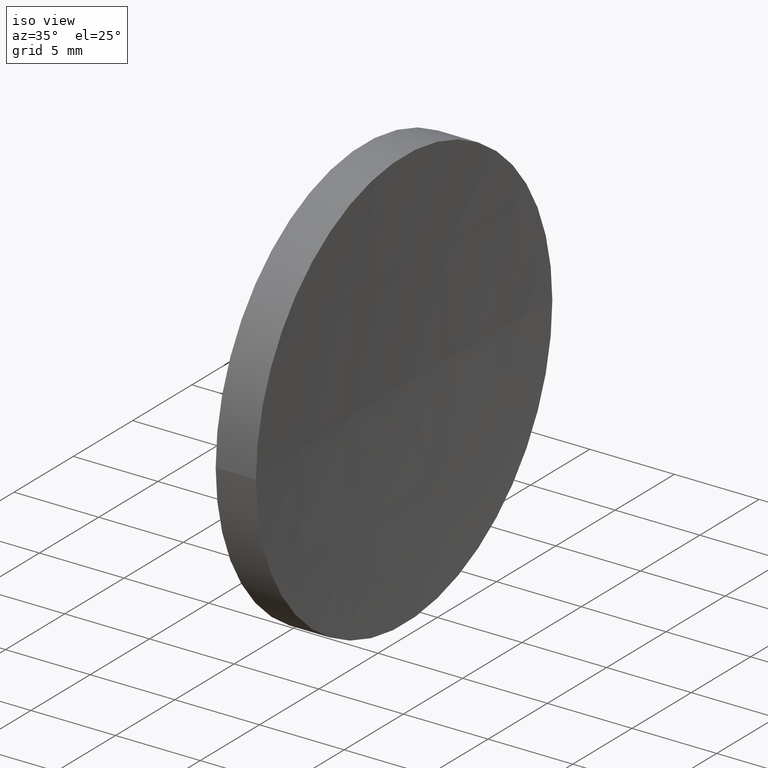
[diagram: clean part render]
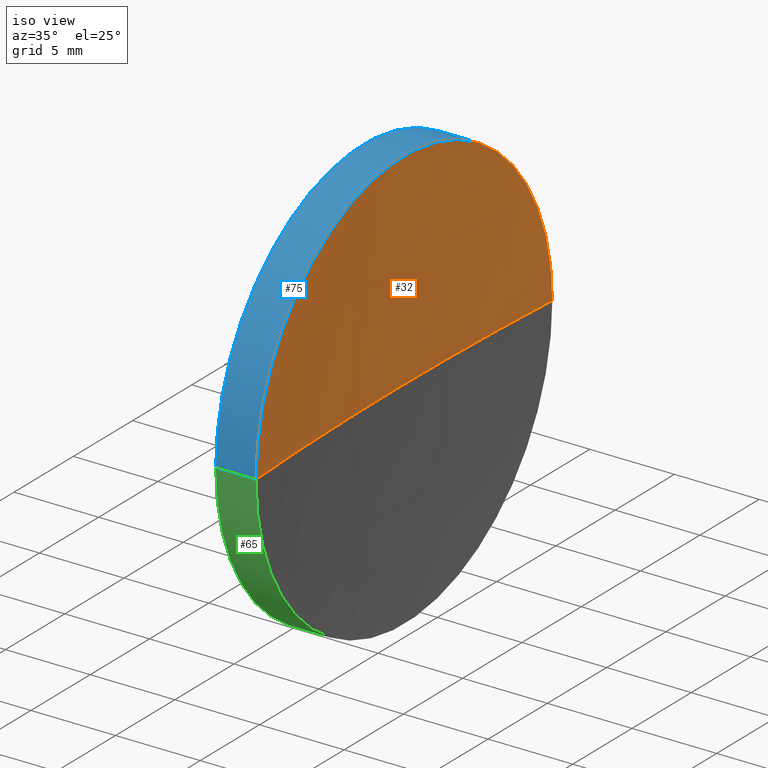
[diagram: same view with three faces highlighted in distinct colors, each labeled with its STEP entity id]
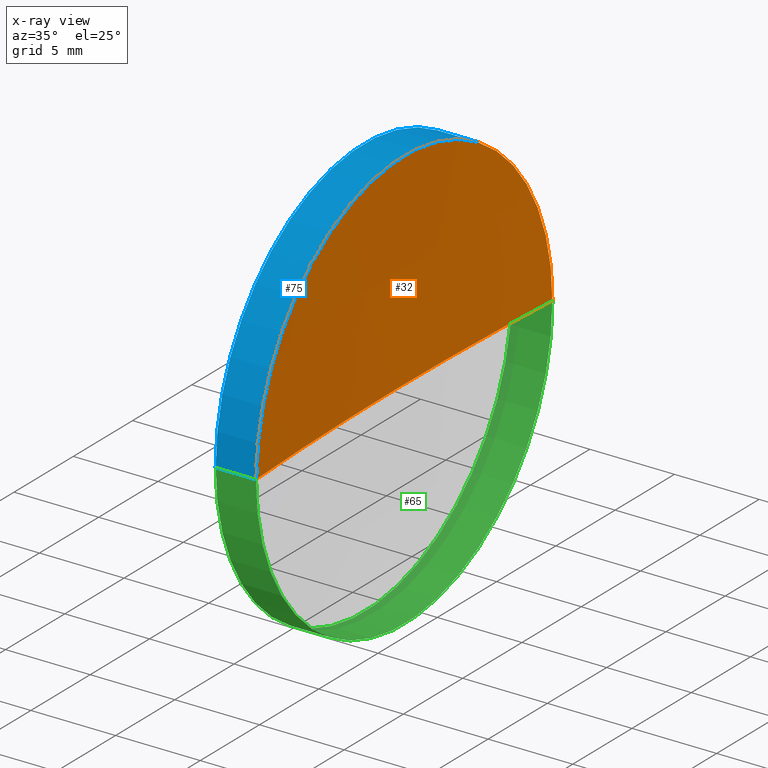
[diagram: x-ray of the same camera — body ghosted, the three highlighted faces saturated]
A machine part, iso view with three faces highlighted in distinct colors.
The next image is the same camera in x-ray (body ghosted, the three faces saturated) — at least one of them is partly hidden behind the body in this view.
Their STEP definitions:

[orange] entity #32 — the highlighted spherical surface has radius 206.1 mm.
#2 = EDGE_CURVE ( 'NONE', #10, #25, #61, .T. ) ;
#5 = AXIS2_PLACEMENT_3D ( 'NONE', #35, #67, #92 ) ;
#7 = AXIS2_PLACEMENT_3D ( 'NONE', #66, #77, #22 ) ;
#10 = VERTEX_POINT ( 'NONE', #140 ) ;
#11 = EDGE_CURVE ( 'NONE', #88, #25, #155, .T. ) ;
#14 = AXIS2_PLACEMENT_3D ( 'NONE', #23, #20, #104 ) ;
#20 = DIRECTION ( 'NONE',  ( -1.000000000000000000, 7.636108817321419600E-016, -0.0000000000000000000 ) ) ;
#22 = DIRECTION ( 'NONE',  ( 1.000000000000000000, 0.0000000000000000000, 0.0000000000000000000 ) ) ;
#23 = CARTESIAN_POINT ( 'NONE',  ( 59.73760295294823000, 32.57872591329309100, 0.0000000000000000000 ) ) ;
#25 = VERTEX_POINT ( 'NONE', #117 ) ;
#32 = ADVANCED_FACE ( 'NONE', ( #158 ), #96, .F. ) ;
#34 = DIRECTION ( 'NONE',  ( 8.080225797854122700E-016, 1.000000000000000000, 0.0000000000000000000 ) ) ;
#35 = CARTESIAN_POINT ( 'NONE',  ( 265.4581901580211300, 32.57872591329290700, 0.0000000000000000000 ) ) ;
#36 = EDGE_CURVE ( 'NONE', #10, #88, #51, .T. ) ;
#42 = CARTESIAN_POINT ( 'NONE',  ( 59.73760295294821500, 45.07872591329273600, 0.0000000000000000000 ) ) ;
#51 = CIRCLE ( 'NONE', #14, 12.50000000000000000 ) ;
#61 = CIRCLE ( 'NONE', #5, 206.0999999999999900 ) ;
#64 = ORIENTED_EDGE ( 'NONE', *, *, #11, .F. ) ;
#66 = CARTESIAN_POINT ( 'NONE',  ( 265.4581901580211300, 32.57872591329290700, 0.0000000000000000000 ) ) ;
#67 = DIRECTION ( 'NONE',  ( 9.351536221073556900E-032, 1.224646799147353200E-016, -1.000000000000000000 ) ) ;
#74 = EDGE_LOOP ( 'NONE', ( #79, #97, #64 ) ) ;
#77 = DIRECTION ( 'NONE',  ( 0.0000000000000000000, 0.0000000000000000000, 1.000000000000000000 ) ) ;
#79 = ORIENTED_EDGE ( 'NONE', *, *, #36, .F. ) ;
#88 = VERTEX_POINT ( 'NONE', #42 ) ;
#92 = DIRECTION ( 'NONE',  ( 0.0000000000000000000, 1.000000000000000000, 1.224646799147353500E-016 ) ) ;
#94 = CARTESIAN_POINT ( 'NONE',  ( 265.4581901580211300, 32.57872591329290700, 0.0000000000000000000 ) ) ;
#96 = SPHERICAL_SURFACE ( 'NONE', #149, 206.0999999999999900 ) ;
#97 = ORIENTED_EDGE ( 'NONE', *, *, #2, .T. ) ;
#104 = DIRECTION ( 'NONE',  ( -5.551115123125782700E-016, -1.000000000000000000, 0.0000000000000000000 ) ) ;
#117 = CARTESIAN_POINT ( 'NONE',  ( 59.35819015802113100, 32.57872591329307700, 0.0000000000000000000 ) ) ;
#140 = CARTESIAN_POINT ( 'NONE',  ( 59.73760295294820800, 20.07872591329342200, -1.530808498934147900E-015 ) ) ;
#141 = DIRECTION ( 'NONE',  ( 0.0000000000000000000, 0.0000000000000000000, -1.000000000000000000 ) ) ;
#149 = AXIS2_PLACEMENT_3D ( 'NONE', #94, #141, #34 ) ;
#155 = CIRCLE ( 'NONE', #7, 206.0999999999999900 ) ;
#158 = FACE_OUTER_BOUND ( 'NONE', #74, .T. ) ;

[blue] entity #75 — the highlighted cylindrical surface (partial cylindrical patch) has radius 12.5 mm, axis along (-1, 0, -0).
#6 = VECTOR ( 'NONE', #164, 1000.000000000000000 ) ;
#10 = VERTEX_POINT ( 'NONE', #140 ) ;
#14 = AXIS2_PLACEMENT_3D ( 'NONE', #23, #20, #104 ) ;
#15 = CARTESIAN_POINT ( 'NONE',  ( 57.35819015802111700, 45.07872591329309100, 1.530808498934191900E-015 ) ) ;
#18 = VERTEX_POINT ( 'NONE', #45 ) ;
#20 = DIRECTION ( 'NONE',  ( -1.000000000000000000, 7.636108817321419600E-016, -0.0000000000000000000 ) ) ;
#21 = LINE ( 'NONE', #56, #6 ) ;
#23 = CARTESIAN_POINT ( 'NONE',  ( 59.73760295294823000, 32.57872591329309100, 0.0000000000000000000 ) ) ;
#28 = EDGE_CURVE ( 'NONE', #18, #159, #166, .T. ) ;
#31 = ORIENTED_EDGE ( 'NONE', *, *, #133, .F. ) ;
#36 = EDGE_CURVE ( 'NONE', #10, #88, #51, .T. ) ;
#39 = ORIENTED_EDGE ( 'NONE', *, *, #36, .T. ) ;
#42 = CARTESIAN_POINT ( 'NONE',  ( 59.73760295294821500, 45.07872591329273600, 0.0000000000000000000 ) ) ;
#44 = DIRECTION ( 'NONE',  ( -1.000000000000000000, 7.636108817321419600E-016, -0.0000000000000000000 ) ) ;
#45 = CARTESIAN_POINT ( 'NONE',  ( 57.35819015802110200, 20.07872591329309800, 0.0000000000000000000 ) ) ;
#47 = AXIS2_PLACEMENT_3D ( 'NONE', #113, #44, #50 ) ;
#48 = FACE_OUTER_BOUND ( 'NONE', #124, .T. ) ;
#50 = DIRECTION ( 'NONE',  ( -5.551115123125782700E-016, -1.000000000000000000, 0.0000000000000000000 ) ) ;
#51 = CIRCLE ( 'NONE', #14, 12.50000000000000000 ) ;
#54 = DIRECTION ( 'NONE',  ( -5.551115123125784700E-016, -1.000000000000000000, 0.0000000000000000000 ) ) ;
#56 = CARTESIAN_POINT ( 'NONE',  ( 55.00739462442117400, 20.07872591329309500, 0.0000000000000000000 ) ) ;
#73 = LINE ( 'NONE', #132, #82 ) ;
#75 = ADVANCED_FACE ( 'NONE', ( #48 ), #115, .T. ) ;
#82 = VECTOR ( 'NONE', #83, 1000.000000000000000 ) ;
#83 = DIRECTION ( 'NONE',  ( -1.000000000000000000, 7.636108817321419600E-016, -0.0000000000000000000 ) ) ;
#85 = AXIS2_PLACEMENT_3D ( 'NONE', #106, #122, #54 ) ;
#88 = VERTEX_POINT ( 'NONE', #42 ) ;
#104 = DIRECTION ( 'NONE',  ( -5.551115123125782700E-016, -1.000000000000000000, 0.0000000000000000000 ) ) ;
#106 = CARTESIAN_POINT ( 'NONE',  ( 57.35819015802111000, 32.57872591329309800, 0.0000000000000000000 ) ) ;
#113 = CARTESIAN_POINT ( 'NONE',  ( 55.00739462442118100, 32.57872591329309800, 0.0000000000000000000 ) ) ;
#115 = CYLINDRICAL_SURFACE ( 'NONE', #47, 12.50000000000000000 ) ;
#122 = DIRECTION ( 'NONE',  ( -1.000000000000000000, 7.636108817321419600E-016, -0.0000000000000000000 ) ) ;
#123 = ORIENTED_EDGE ( 'NONE', *, *, #146, .T. ) ;
#124 = EDGE_LOOP ( 'NONE', ( #39, #123, #144, #31 ) ) ;
#132 = CARTESIAN_POINT ( 'NONE',  ( 55.00739462442118800, 45.07872591329309100, 1.530808498934191500E-015 ) ) ;
#133 = EDGE_CURVE ( 'NONE', #10, #18, #21, .T. ) ;
#140 = CARTESIAN_POINT ( 'NONE',  ( 59.73760295294820800, 20.07872591329342200, -1.530808498934147900E-015 ) ) ;
#144 = ORIENTED_EDGE ( 'NONE', *, *, #28, .F. ) ;
#146 = EDGE_CURVE ( 'NONE', #88, #159, #73, .T. ) ;
#159 = VERTEX_POINT ( 'NONE', #15 ) ;
#164 = DIRECTION ( 'NONE',  ( -1.000000000000000000, 7.636108817321419600E-016, -0.0000000000000000000 ) ) ;
#166 = CIRCLE ( 'NONE', #85, 12.49999999999999600 ) ;

[green] entity #65 — the highlighted cylindrical surface (partial cylindrical patch) has radius 12.5 mm, axis along (-1, 0, -0).
#6 = VECTOR ( 'NONE', #164, 1000.000000000000000 ) ;
#10 = VERTEX_POINT ( 'NONE', #140 ) ;
#13 = ORIENTED_EDGE ( 'NONE', *, *, #133, .T. ) ;
#15 = CARTESIAN_POINT ( 'NONE',  ( 57.35819015802111700, 45.07872591329309100, 1.530808498934191900E-015 ) ) ;
#18 = VERTEX_POINT ( 'NONE', #45 ) ;
#21 = LINE ( 'NONE', #56, #6 ) ;
#27 = DIRECTION ( 'NONE',  ( -1.000000000000000000, 7.636108817321419600E-016, -0.0000000000000000000 ) ) ;
#42 = CARTESIAN_POINT ( 'NONE',  ( 59.73760295294821500, 45.07872591329273600, 0.0000000000000000000 ) ) ;
#45 = CARTESIAN_POINT ( 'NONE',  ( 57.35819015802110200, 20.07872591329309800, 0.0000000000000000000 ) ) ;
#55 = DIRECTION ( 'NONE',  ( -5.551115123125782700E-016, -1.000000000000000000, 0.0000000000000000000 ) ) ;
#56 = CARTESIAN_POINT ( 'NONE',  ( 55.00739462442117400, 20.07872591329309500, 0.0000000000000000000 ) ) ;
#57 = ORIENTED_EDGE ( 'NONE', *, *, #162, .F. ) ;
#65 = ADVANCED_FACE ( 'NONE', ( #108 ), #69, .T. ) ;
#69 = CYLINDRICAL_SURFACE ( 'NONE', #81, 12.50000000000000000 ) ;
#73 = LINE ( 'NONE', #132, #82 ) ;
#81 = AXIS2_PLACEMENT_3D ( 'NONE', #119, #120, #55 ) ;
#82 = VECTOR ( 'NONE', #83, 1000.000000000000000 ) ;
#83 = DIRECTION ( 'NONE',  ( -1.000000000000000000, 7.636108817321419600E-016, -0.0000000000000000000 ) ) ;
#86 = CARTESIAN_POINT ( 'NONE',  ( 57.35819015802111000, 32.57872591329309800, 0.0000000000000000000 ) ) ;
#88 = VERTEX_POINT ( 'NONE', #42 ) ;
#89 = DIRECTION ( 'NONE',  ( -1.000000000000000000, 7.636108817321419600E-016, -0.0000000000000000000 ) ) ;
#93 = EDGE_LOOP ( 'NONE', ( #100, #148, #13, #57 ) ) ;
#100 = ORIENTED_EDGE ( 'NONE', *, *, #146, .F. ) ;
#108 = FACE_OUTER_BOUND ( 'NONE', #93, .T. ) ;
#118 = CIRCLE ( 'NONE', #157, 12.50000000000000000 ) ;
#119 = CARTESIAN_POINT ( 'NONE',  ( 55.00739462442118100, 32.57872591329309800, 0.0000000000000000000 ) ) ;
#120 = DIRECTION ( 'NONE',  ( -1.000000000000000000, 7.636108817321419600E-016, -0.0000000000000000000 ) ) ;
#129 = CIRCLE ( 'NONE', #145, 12.49999999999999600 ) ;
#131 = DIRECTION ( 'NONE',  ( -5.551115123125782700E-016, -1.000000000000000000, 0.0000000000000000000 ) ) ;
#132 = CARTESIAN_POINT ( 'NONE',  ( 55.00739462442118800, 45.07872591329309100, 1.530808498934191500E-015 ) ) ;
#133 = EDGE_CURVE ( 'NONE', #10, #18, #21, .T. ) ;
#137 = EDGE_CURVE ( 'NONE', #88, #10, #118, .T. ) ;
#138 = DIRECTION ( 'NONE',  ( -5.551115123125784700E-016, -1.000000000000000000, 0.0000000000000000000 ) ) ;
#140 = CARTESIAN_POINT ( 'NONE',  ( 59.73760295294820800, 20.07872591329342200, -1.530808498934147900E-015 ) ) ;
#145 = AXIS2_PLACEMENT_3D ( 'NONE', #86, #89, #138 ) ;
#146 = EDGE_CURVE ( 'NONE', #88, #159, #73, .T. ) ;
#148 = ORIENTED_EDGE ( 'NONE', *, *, #137, .T. ) ;
#157 = AXIS2_PLACEMENT_3D ( 'NONE', #163, #27, #131 ) ;
#159 = VERTEX_POINT ( 'NONE', #15 ) ;
#162 = EDGE_CURVE ( 'NONE', #159, #18, #129, .T. ) ;
#163 = CARTESIAN_POINT ( 'NONE',  ( 59.73760295294823000, 32.57872591329309100, 0.0000000000000000000 ) ) ;
#164 = DIRECTION ( 'NONE',  ( -1.000000000000000000, 7.636108817321419600E-016, -0.0000000000000000000 ) ) ;